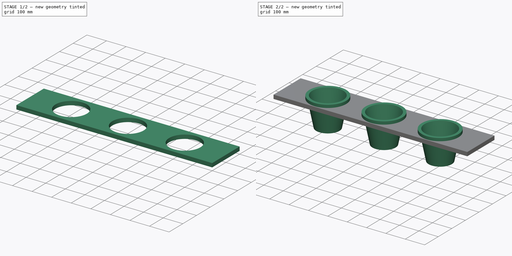
[diagram: build sequence overview — one tinted view per stage of 2, left to right]
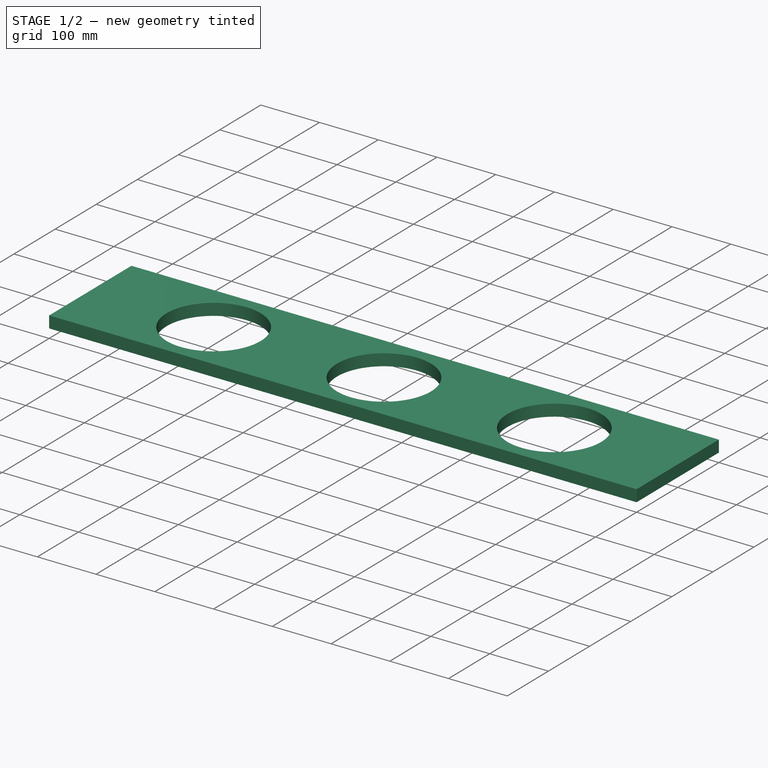
[diagram: stage 1 of 2 — iso view after this stage's code; geometry added in this stage tinted green]
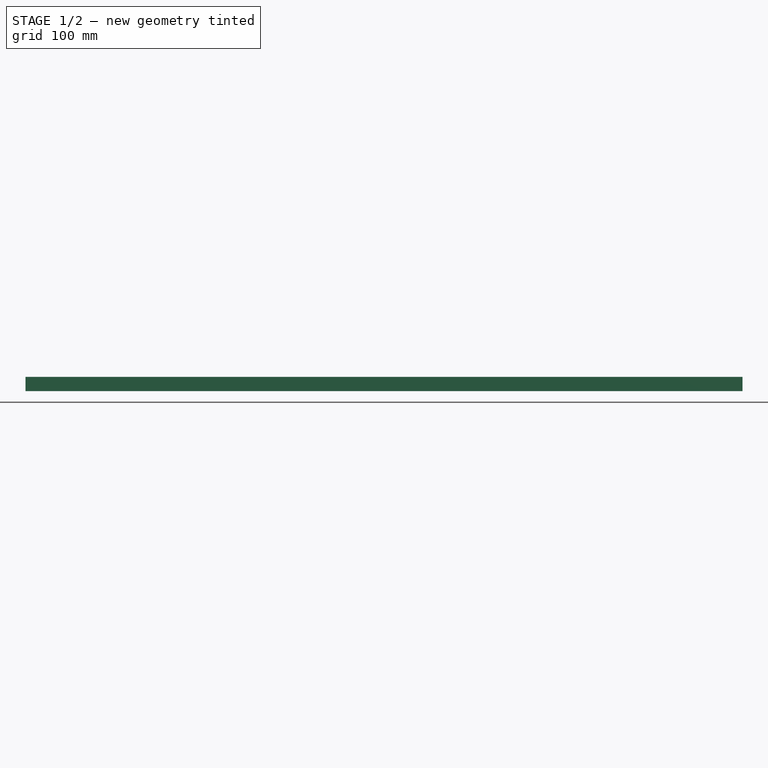
[diagram: stage 1 of 2 — front view after this stage's code; geometry added in this stage tinted green]
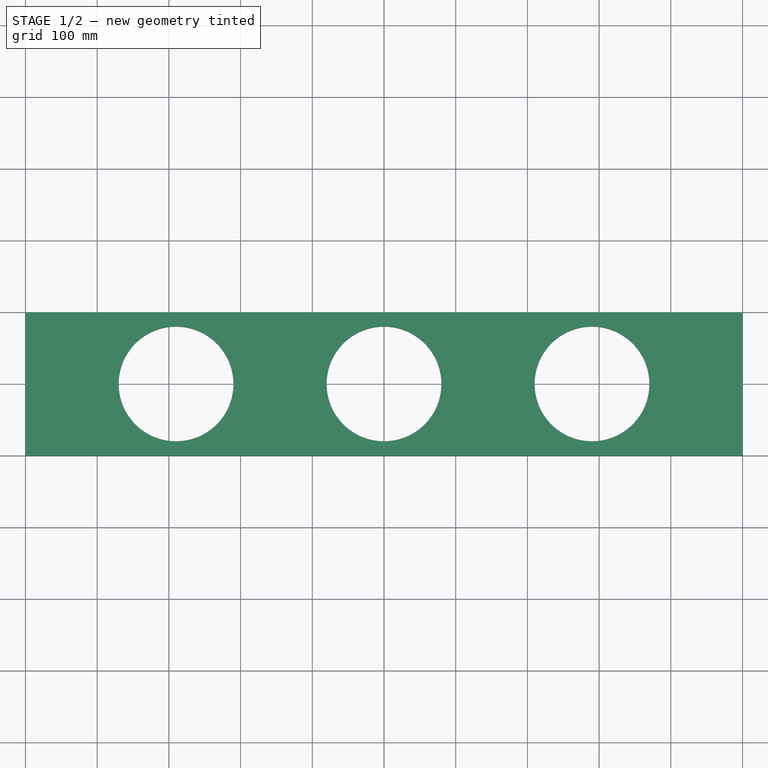
[diagram: stage 1 of 2 — top view after this stage's code; geometry added in this stage tinted green]
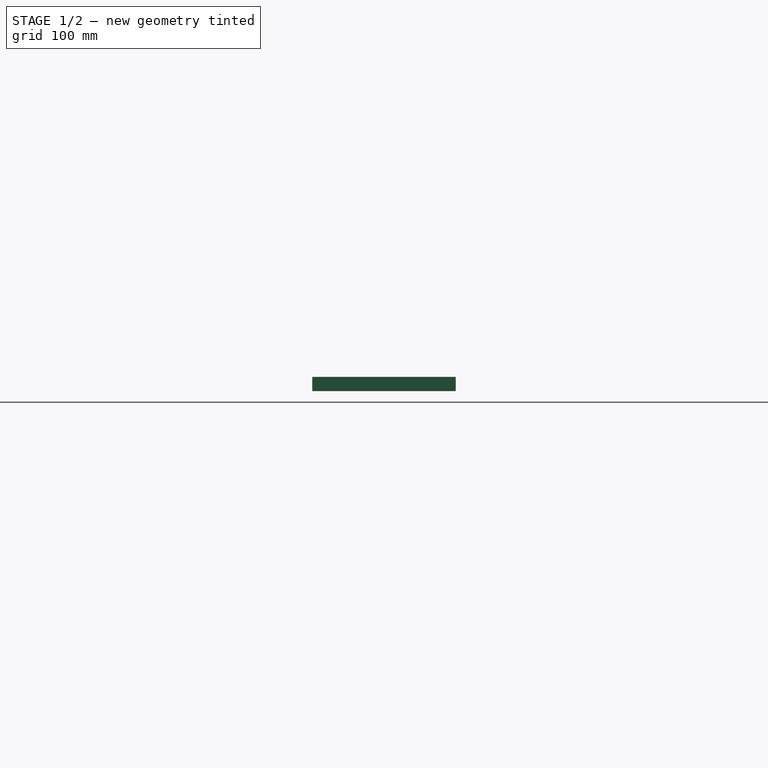
[diagram: stage 1 of 2 — right view after this stage's code; geometry added in this stage tinted green]
FCSTD DOCUMENT  (FreeCAD 0.16R6706 (Git))
Label: Blumenkasten
License: All rights reserved
LicenseURL: http://en.wikipedia.org/wiki/All_rights_reserved
objects: Part::Feature×4, Sketcher::SketchObject×2, PartDesign::Pad×1, PartDesign::Pocket×1, Part::Compound×1
note: 11 computed .brp shape members not serialized (recipe doc carries the construction recipe); baked Part::Feature solids carry a one-line shape summary decoded from their .brp

FEATURE [Sketcher::SketchObject] Sketch
  sketch-geometry (4):
    g0: LineSegment StartX=-500 StartY=100 StartZ=0 EndX=500 EndY=100 EndZ=0
    g1: LineSegment StartX=500 StartY=100 StartZ=0 EndX=500 EndY=-100 EndZ=0
    g2: LineSegment StartX=500 StartY=-100 StartZ=0 EndX=-500 EndY=-100 EndZ=0
    g3: LineSegment StartX=-500 StartY=-100 StartZ=0 EndX=-500 EndY=100 EndZ=0
  constraints (11):
    c: Coincident(g0,g1)
    c: Coincident(g1,g2)
    c: Coincident(g2,g3)
    c: Coincident(g3,g0)
    c: Vertical(g1)
    c: Vertical(g3)
    c: Equal(g3,g1)
    c: Symmetric(g0,g0,g-2)
    c: Symmetric(g0,g2,g-1)
    c: DistanceX(g0,g0) = 1000
    c: DistanceY(g1,g1) = 200
FEATURE [PartDesign::Pad] Pad
  Length = 20
  Length2 = 100
  Sketch = -> Sketch
  Type = 0
FEATURE [Sketcher::SketchObject] Sketch001
  Placement = pos=(0,0,20) rot=(0,0,1;0rad)
  Support = -> Pad [Face6]
  sketch-geometry (7):
    g0: Circle CenterX=0 CenterY=0 CenterZ=0 NormalX=0 NormalY=0 NormalZ=1 Radius=80
    g1: Circle CenterX=290.052 CenterY=0 CenterZ=0 NormalX=0 NormalY=0 NormalZ=1 Radius=80
    g2: GeomPoint [constr] X=-500 Y=0 Z=0
    g3: GeomPoint [constr] X=-80 Y=0 Z=0
    g4: Circle CenterX=-290 CenterY=0 CenterZ=0 NormalX=0 NormalY=0 NormalZ=1 Radius=80
    g5: GeomPoint [constr] X=500.103 Y=0 Z=0
    g6: GeomPoint [constr] X=80 Y=0 Z=0
  constraints (9):
    c: Coincident(g0,g-1)
    c: PointOnObject(g1,g-1)
    c: Radius(g0) = 80
    c: PointOnObject(g2,g-1)
    c: PointOnObject(g3,g-1)
    c: PointOnObject(g3,g0)
    c: PointOnObject(g5,g-1)
    c: PointOnObject(g6,g0)
    c: PointOnObject(g6,g-1)
FEATURE [PartDesign::Pocket] Pocket
  Length = 20
  Sketch = -> Sketch001
  Type = 0
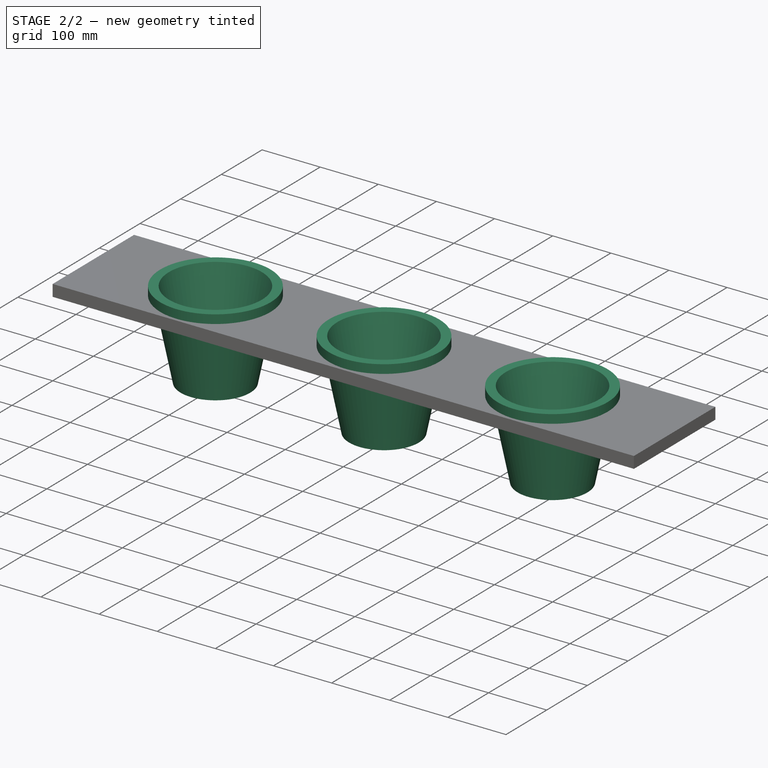
[diagram: stage 2 of 2 — iso view after this stage's code; geometry added in this stage tinted green]
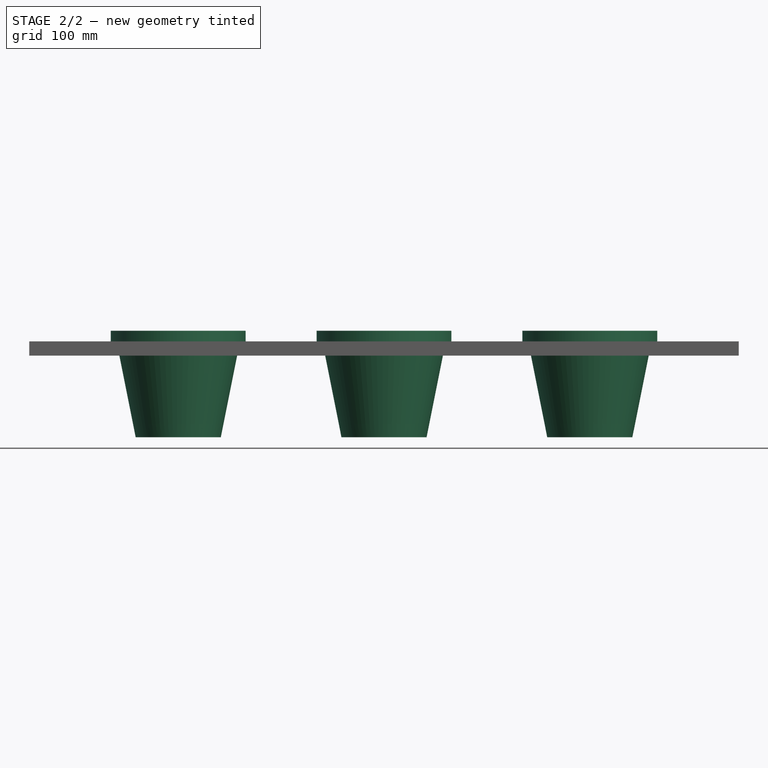
[diagram: stage 2 of 2 — front view after this stage's code; geometry added in this stage tinted green]
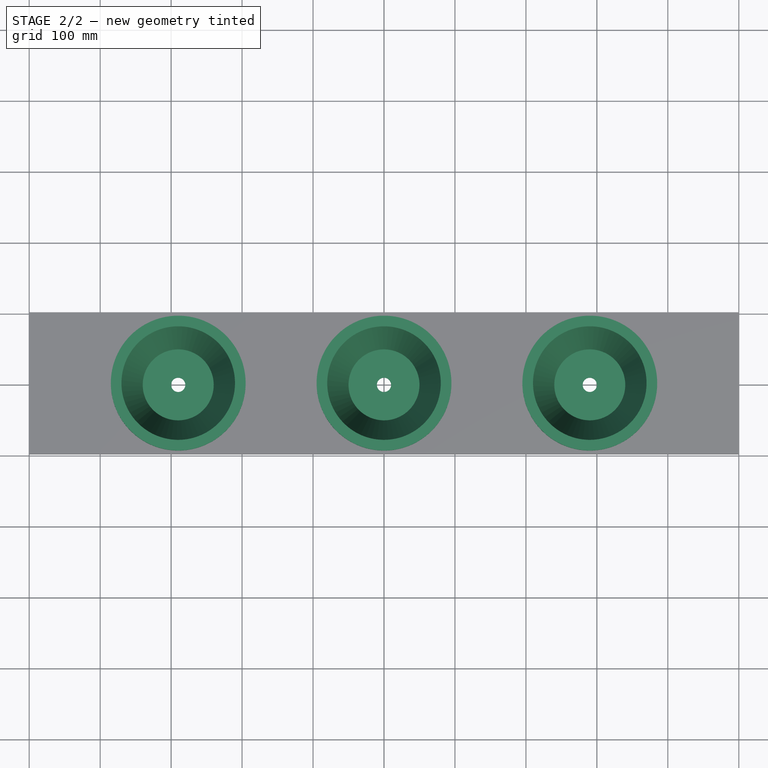
[diagram: stage 2 of 2 — top view after this stage's code; geometry added in this stage tinted green]
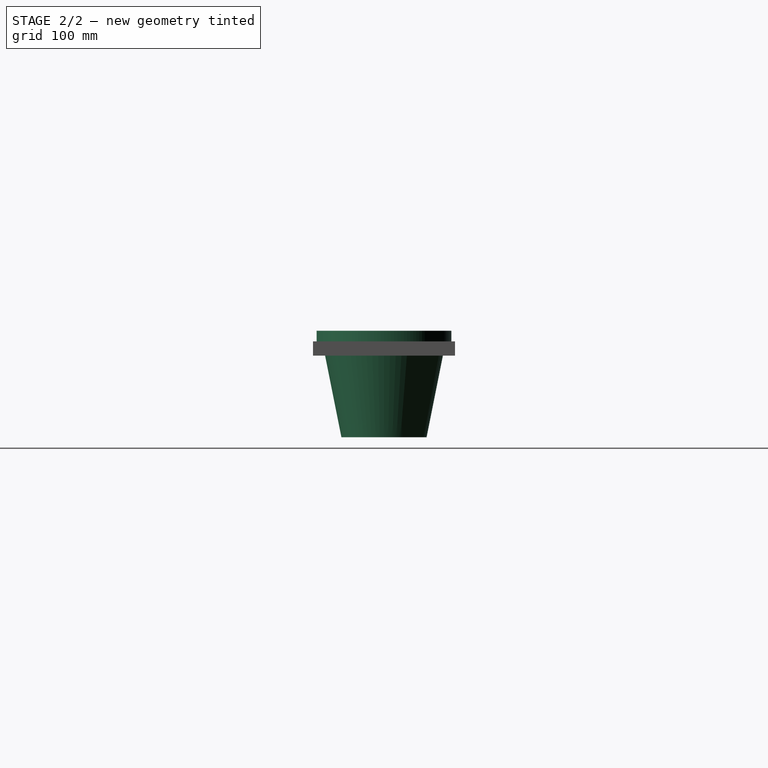
[diagram: stage 2 of 2 — right view after this stage's code; geometry added in this stage tinted green]
FEATURE [Part::Feature] Part__Feature  label="Blumentopf"
  Placement = pos=(0,0,-115) rot=(0,0,1;0rad)
  shape: bbox 190 x 190 x 150 mm, 10 faces (baked)
FEATURE [Part::Feature] Part__Feature001  label="Blumentopf001"
  Placement = pos=(-290,0,-115) rot=(0,0,1;0rad)
  shape: bbox 190 x 190 x 150 mm, 10 faces (baked)
FEATURE [Part::Feature] Part__Feature002  label="Blumentopf002"
  Placement = pos=(290,0,-115) rot=(0,0,1;0rad)
  shape: bbox 190 x 190 x 150 mm, 10 faces (baked)
FEATURE [Part::Compound] Compound
  Links = -> [Pocket,Part__Feature002,Part__Feature,Part__Feature001]
FEATURE [Part::Feature] Compound001
  shape: bbox 1000 x 200 x 150 mm, 39 faces, 4 solids (baked)
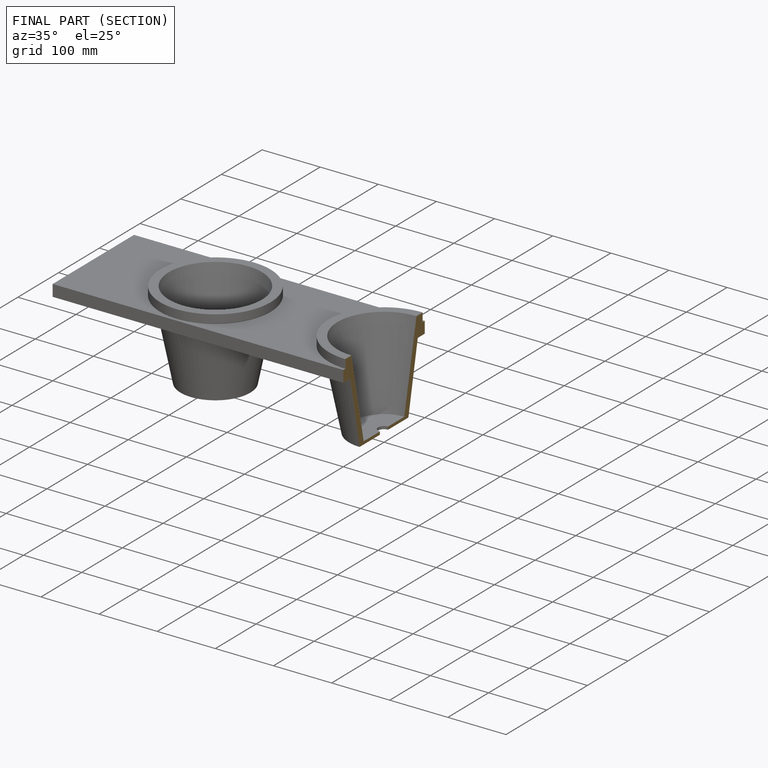
[diagram: finished part — half-section view (interior)]
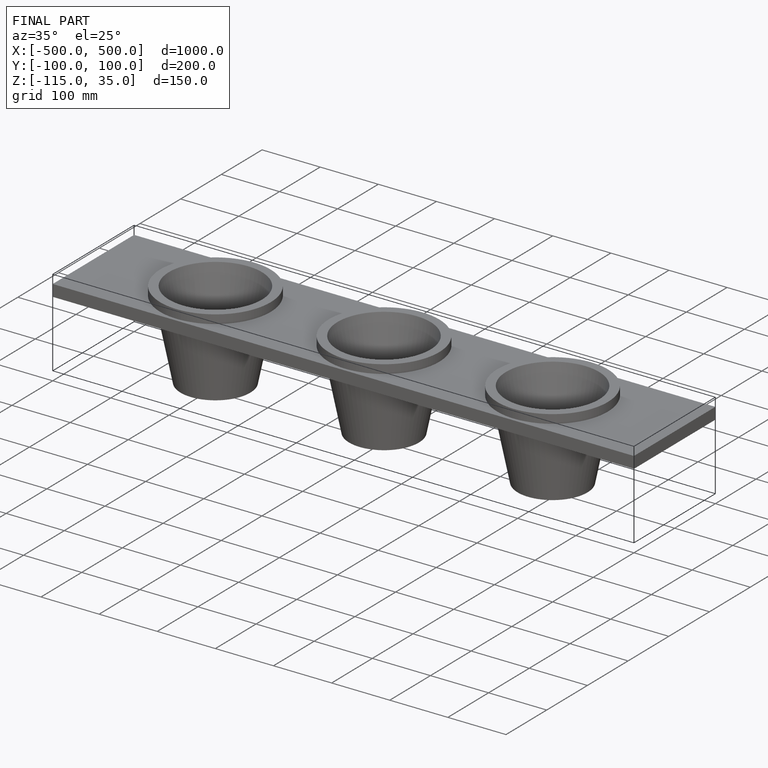
[diagram: finished part — iso view with bounding-box wireframe]
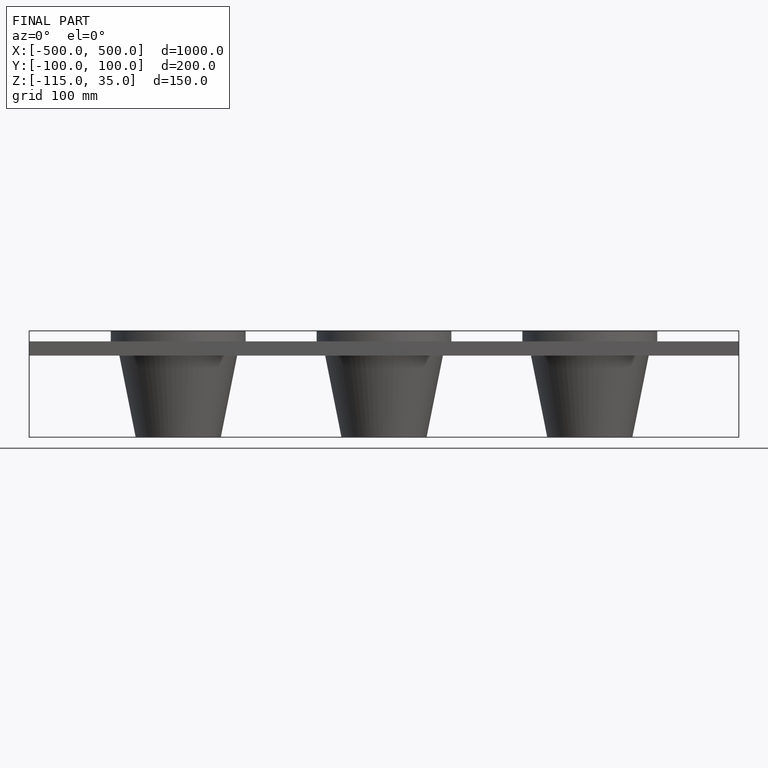
[diagram: finished part — front view with bounding-box wireframe]
